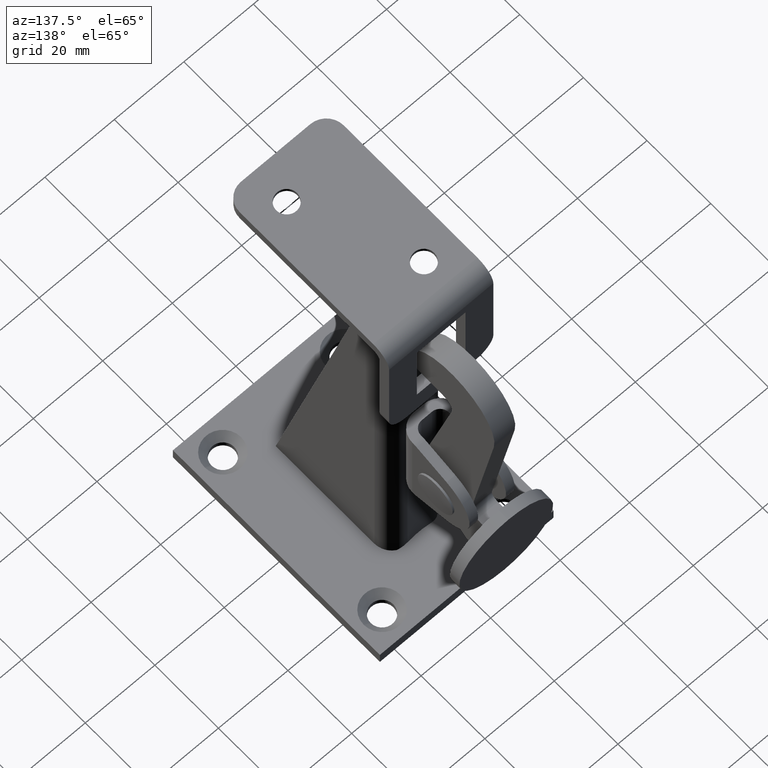
[diagram: clean part render]
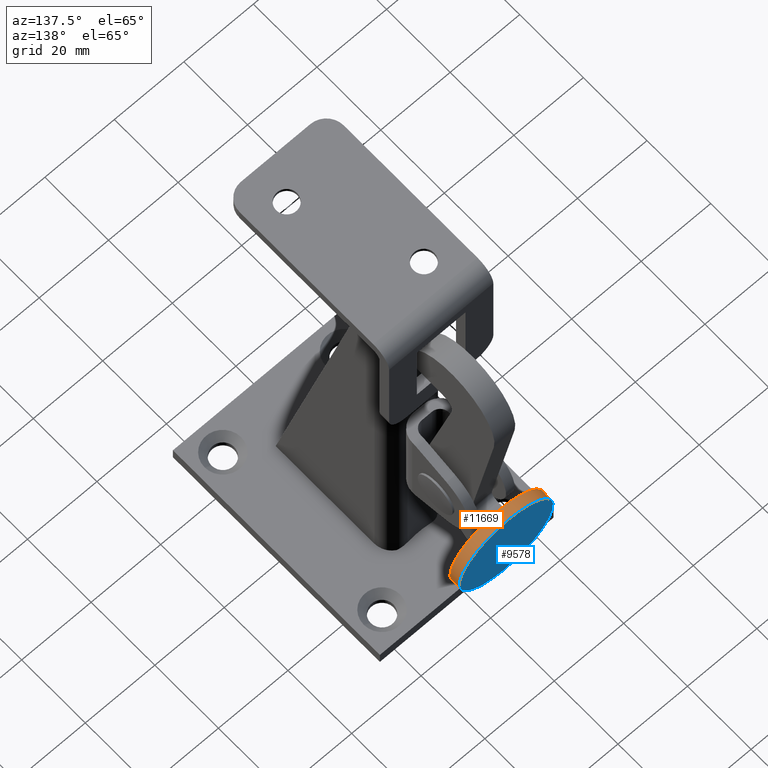
[diagram: same view with the hole feature highlighted: cylindrical wall and planar end face, labeled with their STEP entity ids]
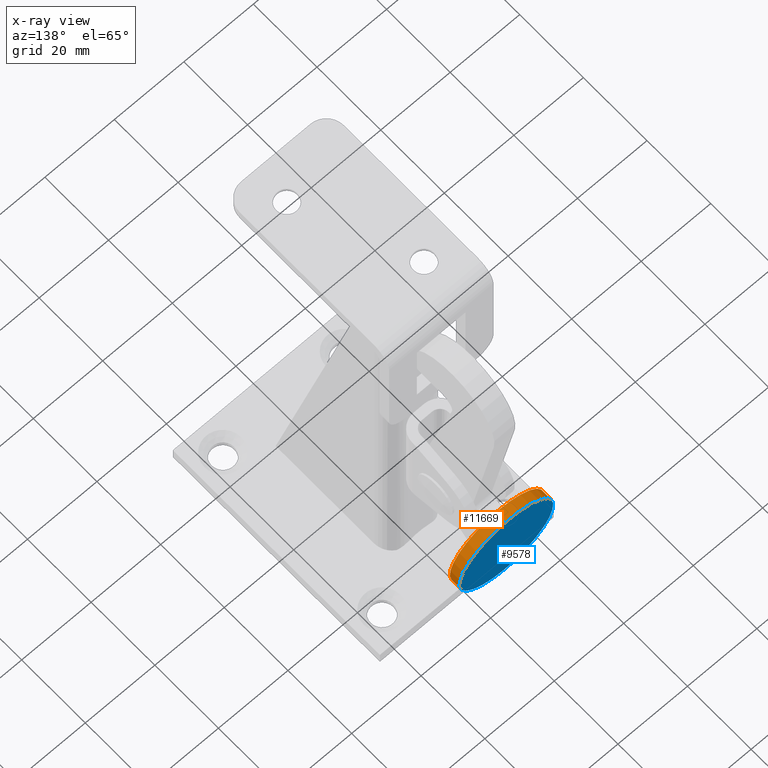
[diagram: x-ray of the same camera — body ghosted, the hole faces saturated]
A machine part, auxiliary view. The highlighted faces form one hole feature of diameter 27 mm: the cylindrical wall (entity #11669, orange) and its adjacent planar end face (entity #9578, blue) — they share a circular edge in the B-rep.
The next image is the same camera in x-ray (body ghosted, the hole faces saturated) — the bore reads through the body.
Wall:
#884 = DIRECTION ( 'NONE',  ( 0.0000000000000000000, -1.000000000000000000, -2.498001805406598300E-016 ) ) ;
#1938 = AXIS2_PLACEMENT_3D ( 'NONE', #11628, #3331, #9631 ) ;
#1984 = FACE_OUTER_BOUND ( 'NONE', #6965, .T. ) ;
#2743 = AXIS2_PLACEMENT_3D ( 'NONE', #12146, #5760, #6856 ) ;
#3331 = DIRECTION ( 'NONE',  ( 0.0000000000000000000, 1.000000000000000000, 2.498001805406598300E-016 ) ) ;
#4563 = EDGE_LOOP ( 'NONE', ( #7823 ) ) ;
#4842 = CIRCLE ( 'NONE', #1938, 13.50000000000002100 ) ;
#5074 = EDGE_CURVE ( 'NONE', #10206, #10206, #4842, .T. ) ;
#5760 = DIRECTION ( 'NONE',  ( 0.0000000000000000000, 1.000000000000000000, 2.498001805406598300E-016 ) ) ;
#6776 = CARTESIAN_POINT ( 'NONE',  ( 9.258329801554016100E-016, 27.00000000000004600, 1.470000000000035500 ) ) ;
#6856 = DIRECTION ( 'NONE',  ( 0.0000000000000000000, -2.569960705150821500E-016, 1.000000000000000000 ) ) ;
#6965 = EDGE_LOOP ( 'NONE', ( #11589 ) ) ;
#7823 = ORIENTED_EDGE ( 'NONE', *, *, #11439, .F. ) ;
#7898 = CARTESIAN_POINT ( 'NONE',  ( 9.258329801554016100E-016, 30.00000000000000000, 1.470000000000028600 ) ) ;
#8278 = CARTESIAN_POINT ( 'NONE',  ( 9.258329801554016100E-016, 30.00000000000000400, -12.02999999999999200 ) ) ;
#8321 = DIRECTION ( 'NONE',  ( 0.0000000000000000000, 2.569960705150821500E-016, -1.000000000000000000 ) ) ;
#9631 = DIRECTION ( 'NONE',  ( 0.0000000000000000000, -2.569960705150821500E-016, 1.000000000000000000 ) ) ;
#10088 = CYLINDRICAL_SURFACE ( 'NONE', #10554, 13.50000000000002000 ) ;
#10206 = VERTEX_POINT ( 'NONE', #6776 ) ;
#10554 = AXIS2_PLACEMENT_3D ( 'NONE', #8278, #884, #8321 ) ;
#10758 = CIRCLE ( 'NONE', #2743, 13.50000000000002100 ) ;
#11050 = VERTEX_POINT ( 'NONE', #7898 ) ;
#11439 = EDGE_CURVE ( 'NONE', #11050, #11050, #10758, .T. ) ;
#11589 = ORIENTED_EDGE ( 'NONE', *, *, #5074, .T. ) ;
#11628 = CARTESIAN_POINT ( 'NONE',  ( 9.258329801554016100E-016, 27.00000000000005000, -12.02999999999998500 ) ) ;
#11669 = ADVANCED_FACE ( 'NONE', ( #12930, #1984 ), #10088, .T. ) ;
#12146 = CARTESIAN_POINT ( 'NONE',  ( 9.258329801554016100E-016, 30.00000000000000400, -12.02999999999999200 ) ) ;
#12930 = FACE_OUTER_BOUND ( 'NONE', #4563, .T. ) ;
End face:
#991 = DIRECTION ( 'NONE',  ( 0.0000000000000000000, 1.000000000000000000, 2.498001805406598300E-016 ) ) ;
#2743 = AXIS2_PLACEMENT_3D ( 'NONE', #12146, #5760, #6856 ) ;
#3112 = CARTESIAN_POINT ( 'NONE',  ( 9.258329801554016100E-016, 30.00000000000000400, -12.02999999999999200 ) ) ;
#5760 = DIRECTION ( 'NONE',  ( 0.0000000000000000000, 1.000000000000000000, 2.498001805406598300E-016 ) ) ;
#6650 = AXIS2_PLACEMENT_3D ( 'NONE', #3112, #991, #13630 ) ;
#6856 = DIRECTION ( 'NONE',  ( 0.0000000000000000000, -2.569960705150821500E-016, 1.000000000000000000 ) ) ;
#7898 = CARTESIAN_POINT ( 'NONE',  ( 9.258329801554016100E-016, 30.00000000000000000, 1.470000000000028600 ) ) ;
#9305 = FACE_OUTER_BOUND ( 'NONE', #10860, .T. ) ;
#9510 = ORIENTED_EDGE ( 'NONE', *, *, #11439, .T. ) ;
#9578 = ADVANCED_FACE ( 'NONE', ( #9305 ), #11435, .T. ) ;
#10758 = CIRCLE ( 'NONE', #2743, 13.50000000000002100 ) ;
#10860 = EDGE_LOOP ( 'NONE', ( #9510 ) ) ;
#11050 = VERTEX_POINT ( 'NONE', #7898 ) ;
#11435 = PLANE ( 'NONE',  #6650 ) ;
#11439 = EDGE_CURVE ( 'NONE', #11050, #11050, #10758, .T. ) ;
#12146 = CARTESIAN_POINT ( 'NONE',  ( 9.258329801554016100E-016, 30.00000000000000400, -12.02999999999999200 ) ) ;
#13630 = DIRECTION ( 'NONE',  ( 0.0000000000000000000, -2.498001805406598300E-016, 1.000000000000000000 ) ) ;